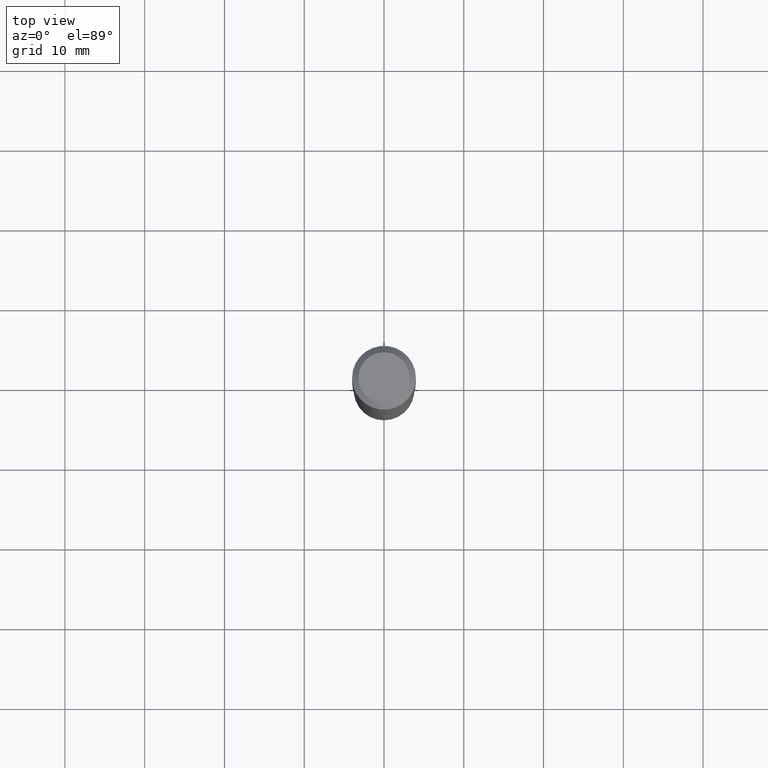
[diagram: clean part render]
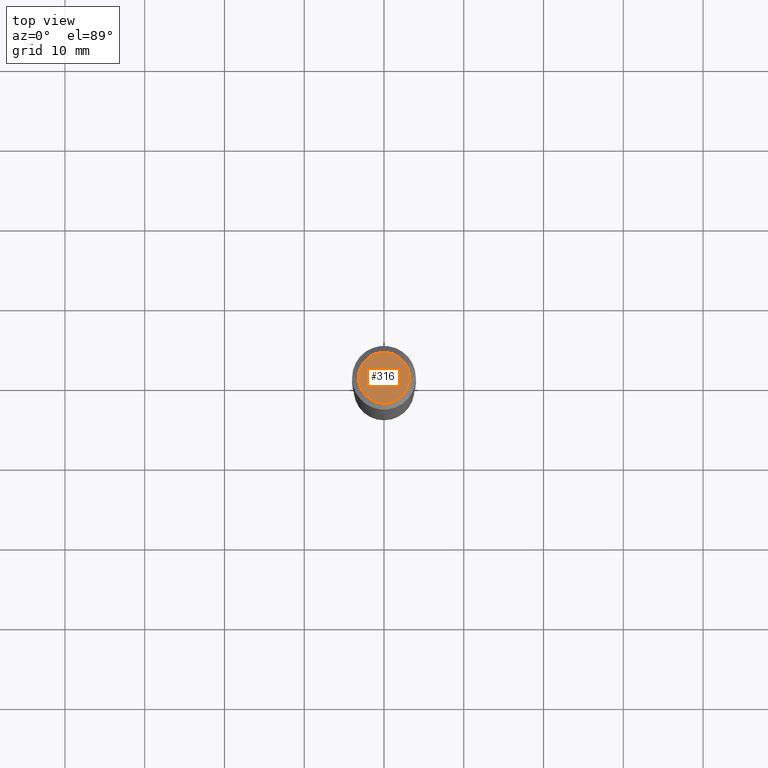
[diagram: same view with one face highlighted and labeled with its STEP entity id]
A machine part, top view. The second image highlights one B-rep face of the part: STEP entity #316.
In plain terms, the highlighted planar face has unit normal (0, -0, -1).
Its self-contained STEP definition (entity closure, byte-faithful):
#7 = EDGE_LOOP ( 'NONE', ( #65, #306 ) ) ;
#22 = CARTESIAN_POINT ( 'NONE',  ( 0.1260000000000000009, -1.027466422270894443E-15, 3.860086710919128072E-18 ) ) ;
#36 = DIRECTION ( 'NONE',  ( -1.000000000000000000, 6.982962677686265922E-15, -4.876176775795935793E-29 ) ) ;
#38 = DIRECTION ( 'NONE',  ( 1.000000000000000000, -6.982962677686265922E-15, 4.876281427513067258E-29 ) ) ;
#65 = ORIENTED_EDGE ( 'NONE', *, *, #400, .T. ) ;
#72 = CIRCLE ( 'NONE', #128, 0.1260000000000000009 ) ;
#102 = CARTESIAN_POINT ( 'NONE',  ( -4.719860820353100843E-47, 6.738710358733633822E-33, 1.930043355456229866E-18 ) ) ;
#108 = DIRECTION ( 'NONE',  ( -2.445468806185136597E-29, 3.491481338843145583E-15, 1.000000000000000000 ) ) ;
#128 = AXIS2_PLACEMENT_3D ( 'NONE', #290, #108, #38 ) ;
#213 = DIRECTION ( 'NONE',  ( 2.438088387897960049E-29, -3.491481338843145188E-15, -1.000000000000000000 ) ) ;
#215 = FACE_OUTER_BOUND ( 'NONE', #7, .T. ) ;
#221 = CARTESIAN_POINT ( 'NONE',  ( -0.1260000000000000009, 9.348441284752484904E-16, 3.860086710906114178E-18 ) ) ;
#228 = VERTEX_POINT ( 'NONE', #22 ) ;
#283 = CARTESIAN_POINT ( 'NONE',  ( -9.439721640706201686E-47, 1.347742071746726764E-32, 3.860086710912459732E-18 ) ) ;
#287 = PLANE ( 'NONE',  #437 ) ;
#290 = CARTESIAN_POINT ( 'NONE',  ( -9.439721640706201686E-47, 1.347742071746726764E-32, 3.860086710912459732E-18 ) ) ;
#306 = ORIENTED_EDGE ( 'NONE', *, *, #344, .T. ) ;
#316 = ADVANCED_FACE ( 'NONE', ( #215 ), #287, .F. ) ;
#344 = EDGE_CURVE ( 'NONE', #228, #373, #72, .T. ) ;
#358 = AXIS2_PLACEMENT_3D ( 'NONE', #283, #442, #364 ) ;
#364 = DIRECTION ( 'NONE',  ( 1.000000000000000000, -6.982962677686265922E-15, 4.876281427513067258E-29 ) ) ;
#373 = VERTEX_POINT ( 'NONE', #221 ) ;
#400 = EDGE_CURVE ( 'NONE', #373, #228, #470, .T. ) ;
#437 = AXIS2_PLACEMENT_3D ( 'NONE', #102, #213, #36 ) ;
#442 = DIRECTION ( 'NONE',  ( -2.445468806185136597E-29, 3.491481338843145583E-15, 1.000000000000000000 ) ) ;
#470 = CIRCLE ( 'NONE', #358, 0.1260000000000000009 ) ;